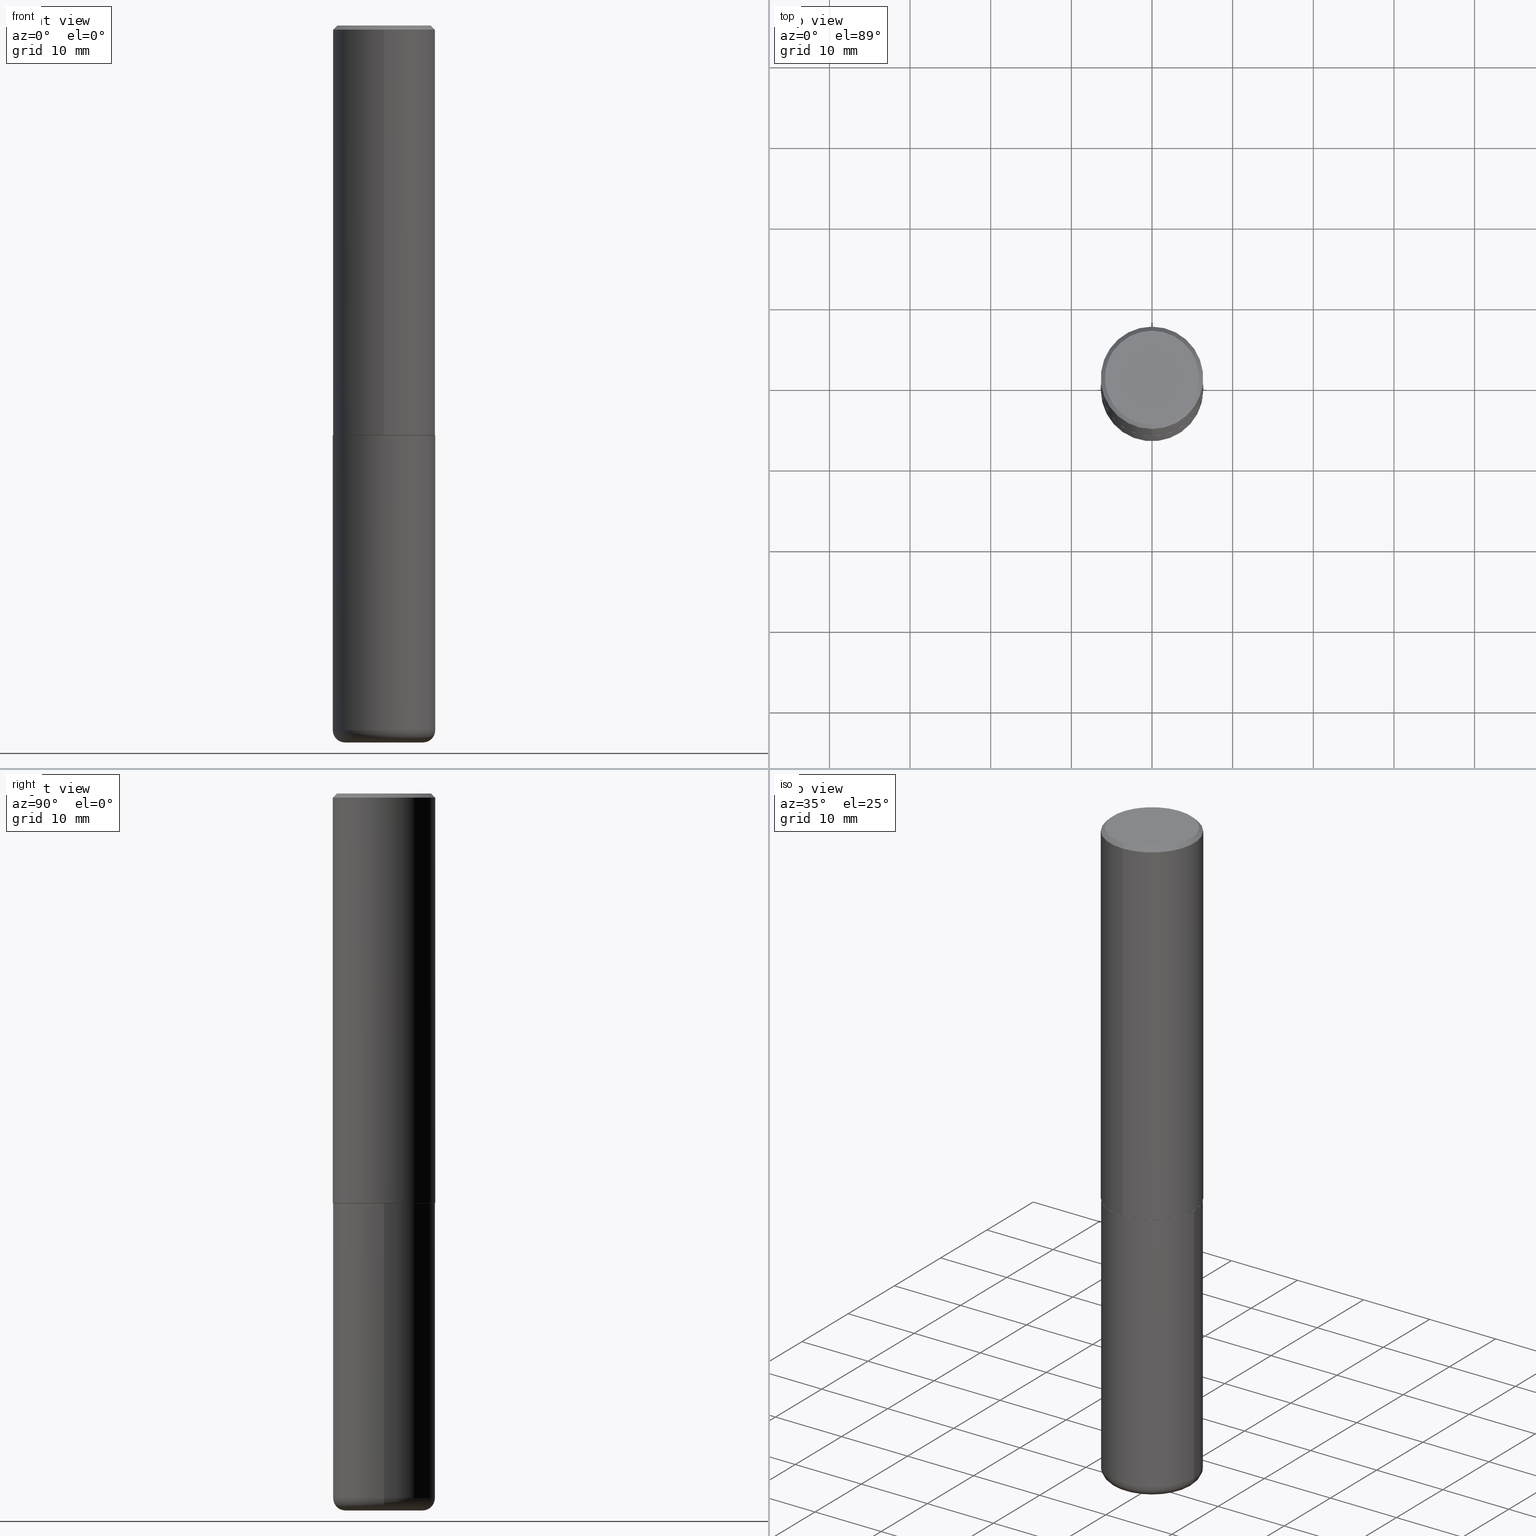
[diagram: canonical four-view strip — front | top / right | iso, engineering-drawing reading convention]
A machine part, canonical four-view strip (front | top / right | iso — engineering-drawing reading convention). The complete STEP part file that produces these views, byte-faithful:
ISO-10303-21;
HEADER;
FILE_DESCRIPTION (( 'STEP AP203' ),
    '1' );
FILE_NAME ('77361.STEP',
    '2024-05-02T19:32:17',
    ( '' ),
    ( '' ),
    'SwSTEP 2.0',
    'SolidWorks 2023',
    '' );
FILE_SCHEMA (( 'CONFIG_CONTROL_DESIGN' ));
ENDSEC;

DATA;
#1 = VECTOR ( 'NONE', #250, 39.37007874015748143 ) ;
#2 = CC_DESIGN_APPROVAL ( #20, ( #97 ) ) ;
#3 = DATE_AND_TIME ( #320, #137 ) ;
#4 = APPROVAL_STATUS ( 'not_yet_approved' ) ;
#5 = ORIENTED_EDGE ( 'NONE', *, *, #6, .F. ) ;
#6 = EDGE_CURVE ( 'NONE', #164, #407, #315, .T. ) ;
#7 = CARTESIAN_POINT ( 'NONE',  ( -1.745740669421519543E-15, -0.2500000000000072720, -1.998999999999999000 ) ) ;
#8 = MANIFOLD_SOLID_BREP ( 'Body-Move/Copy2[1]', #188 ) ;
#9 = CIRCLE ( 'NONE', #338, 0.2489999999999999991 ) ;
#10 = DIRECTION ( 'NONE',  ( 2.444078991372175283E-29, -3.493471632758652550E-15, -1.000000000000000000 ) ) ;
#11 = CARTESIAN_POINT ( 'NONE',  ( 8.412412693276869938E-29, -1.201069580562042103E-14, -3.439999999999999947 ) ) ;
#12 = PRODUCT_DEFINITION_SHAPE ( 'NONE', 'NONE',  #101 ) ;
#13 = ADVANCED_BREP_SHAPE_REPRESENTATION ( '77361', ( #8, #285, #54 ), #212 ) ;
#14 = DIRECTION ( 'NONE',  ( -6.982962677686265922E-15, -1.000000000000000000, 3.493471632758652550E-15 ) ) ;
#15 = ADVANCED_FACE ( 'NONE', ( #296 ), #197, .T. ) ;
#16 = AXIS2_PLACEMENT_3D ( 'NONE', #128, #95, #413 ) ;
#17 = DIRECTION ( 'NONE',  ( -2.444078991372175563E-29, 3.493471632758652550E-15, 1.000000000000000000 ) ) ;
#18 = ORIENTED_EDGE ( 'NONE', *, *, #42, .T. ) ;
#19 = DIRECTION ( 'NONE',  ( -2.445468806185136597E-29, 3.491481338843145583E-15, 1.000000000000000000 ) ) ;
#20 = APPROVAL ( #394, 'UNSPECIFIED' ) ;
#21 = VERTEX_POINT ( 'NONE', #145 ) ;
#22 = DIRECTION ( 'NONE',  ( -2.444078991372175563E-29, 3.493471632758652550E-15, 1.000000000000000000 ) ) ;
#23 = FACE_OUTER_BOUND ( 'NONE', #51, .T. ) ;
#24 = ORIENTED_EDGE ( 'NONE', *, *, #393, .F. ) ;
#25 = CIRCLE ( 'NONE', #247, 0.2500000000000000000 ) ;
#26 = DIRECTION ( 'NONE',  ( -2.444078991372175563E-29, 3.493471632758652550E-15, 1.000000000000000000 ) ) ;
#27 = EDGE_LOOP ( 'NONE', ( #55, #161, #332, #120 ) ) ;
#28 = PERSON_AND_ORGANIZATION ( #398, #254 ) ;
#29 = DIRECTION ( 'NONE',  ( -2.445468806185136597E-29, 3.491481338843145583E-15, 1.000000000000000000 ) ) ;
#30 = EDGE_LOOP ( 'NONE', ( #259, #24 ) ) ;
#31 = CIRCLE ( 'NONE', #342, 0.1899999999999999745 ) ;
#32 = APPLICATION_CONTEXT ( 'configuration controlled 3d designs of mechanical parts and assemblies' ) ;
#33 = LOCAL_TIME ( 15, 32, 17.00000000000000000, #38 ) ;
#34 = CIRCLE ( 'NONE', #331, 0.05999999999999994227 ) ;
#35 = DATE_AND_TIME ( #227, #343 ) ;
#36 = CARTESIAN_POINT ( 'NONE',  ( 0.2500000000000000000, -8.728703347107857054E-15, -2.000000000000000000 ) ) ;
#37 = EDGE_CURVE ( 'NONE', #58, #21, #69, .T. ) ;
#38 = COORDINATED_UNIVERSAL_TIME_OFFSET ( 5, 0, .BEHIND. ) ;
#39 = DIRECTION ( 'NONE',  ( 1.000000000000000000, -6.982962677686266711E-15, 0.000000000000000000 ) ) ;
#40 = EDGE_CURVE ( 'NONE', #256, #198, #31, .T. ) ;
#41 = CALENDAR_DATE ( 2024, 2, 5 ) ;
#42 = EDGE_CURVE ( 'NONE', #93, #253, #389, .T. ) ;
#43 = CARTESIAN_POINT ( 'NONE',  ( 4.890937612370273194E-29, -6.982962677686291165E-15, -2.000000000000000000 ) ) ;
#44 = DIRECTION ( 'NONE',  ( -6.982962677686265133E-15, -1.000000000000000000, 3.291383124896702687E-15 ) ) ;
#45 = AXIS2_PLACEMENT_3D ( 'NONE', #298, #85, #14 ) ;
#46 =( LENGTH_UNIT ( ) NAMED_UNIT ( * ) SI_UNIT ( $, .METRE. ) );
#47 = DIRECTION ( 'NONE',  ( -6.982962677686265133E-15, -1.000000000000000000, 3.291383124896702687E-15 ) ) ;
#48 = CARTESIAN_POINT ( 'NONE',  ( 8.559140821647976968E-29, -1.222018468595100934E-14, -3.500000000000000000 ) ) ;
#49 = MECHANICAL_CONTEXT ( 'NONE', #32, 'mechanical' ) ;
#50 = LINE ( 'NONE', #230, #82 ) ;
#51 = EDGE_LOOP ( 'NONE', ( #328, #243, #139, #152 ) ) ;
#52 = PLANE ( 'NONE',  #53 ) ;
#53 = AXIS2_PLACEMENT_3D ( 'NONE', #181, #122, #217 ) ;
#54 = AXIS2_PLACEMENT_3D ( 'NONE', #149, #269, #236 ) ;
#55 = ORIENTED_EDGE ( 'NONE', *, *, #388, .F. ) ;
#56 = DIRECTION ( 'NONE',  ( -6.982962677686266711E-15, -1.000000000000000000, 3.491481338843145583E-15 ) ) ;
#57 = APPLICATION_CONTEXT ( 'configuration controlled 3d designs of mechanical parts and assemblies' ) ;
#58 = VERTEX_POINT ( 'NONE', #266 ) ;
#59 = DIRECTION ( 'NONE',  ( -6.982962677686265922E-15, -1.000000000000000000, 3.278217592397112312E-15 ) ) ;
#60 = ADVANCED_FACE ( 'NONE', ( #170 ), #381, .T. ) ;
#61 = ORIENTED_EDGE ( 'NONE', *, *, #334, .F. ) ;
#62 = FACE_OUTER_BOUND ( 'NONE', #282, .T. ) ;
#63 = CARTESIAN_POINT ( 'NONE',  ( 4.888157982744351127E-29, -6.986943265517304311E-15, -2.000000000000000000 ) ) ;
#64 = ORIENTED_EDGE ( 'NONE', *, *, #373, .F. ) ;
#65 = AXIS2_PLACEMENT_3D ( 'NONE', #215, #22, #126 ) ;
#66 = CARTESIAN_POINT ( 'NONE',  ( 8.412412693276869938E-29, -1.201069580562042103E-14, -3.439999999999999947 ) ) ;
#67 = DIRECTION ( 'NONE',  ( 2.444078991372175563E-29, -3.493471632758652550E-15, -1.000000000000000000 ) ) ;
#68 = ORIENTED_EDGE ( 'NONE', *, *, #334, .T. ) ;
#69 = CIRCLE ( 'NONE', #45, 0.2299999999999997047 ) ;
#70 = APPROVAL_DATE_TIME ( #277, #199 ) ;
#71 = DATE_TIME_ROLE ( 'classification_date' ) ;
#72 = DIRECTION ( 'NONE',  ( -2.445468806185136597E-29, 3.491481338843145583E-15, 1.000000000000000000 ) ) ;
#73 = EDGE_LOOP ( 'NONE', ( #218, #64 ) ) ;
#74 = CIRCLE ( 'NONE', #90, 0.2500000000000000000 ) ;
#75 = CC_DESIGN_SECURITY_CLASSIFICATION ( #109, ( #97 ) ) ;
#76 = COORDINATED_UNIVERSAL_TIME_OFFSET ( 5, 0, .BEHIND. ) ;
#77 =( NAMED_UNIT ( * ) SI_UNIT ( $, .STERADIAN. ) SOLID_ANGLE_UNIT ( ) );
#78 = DIRECTION ( 'NONE',  ( -2.445468806185136877E-29, 3.491481338843145188E-15, 1.000000000000000000 ) ) ;
#79 = ADVANCED_FACE ( 'NONE', ( #326 ), #81, .T. ) ;
#80 = DIRECTION ( 'NONE',  ( 2.444078991372175563E-29, -3.493471632758652550E-15, -1.000000000000000000 ) ) ;
#81 = CYLINDRICAL_SURFACE ( 'NONE', #416, 0.2500000000000000000 ) ;
#82 = VECTOR ( 'NONE', #351, 39.37007874015748143 ) ;
#83 = APPLICATION_PROTOCOL_DEFINITION ( 'international standard', 'config_control_design', 1994, #32 ) ;
#84 = CC_DESIGN_APPROVAL ( #299, ( #101 ) ) ;
#85 = DIRECTION ( 'NONE',  ( -2.444078991372175563E-29, 3.493471632758652550E-15, 1.000000000000000000 ) ) ;
#86 = CARTESIAN_POINT ( 'NONE',  ( 0.000000000000000000, 0.000000000000000000, 0.000000000000000000 ) ) ;
#87 = EDGE_CURVE ( 'NONE', #198, #214, #34, .T. ) ;
#88 = ORIENTED_EDGE ( 'NONE', *, *, #190, .F. ) ;
#89 = DIRECTION ( 'NONE',  ( -4.937700262165053702E-15, -0.7071067811866175168, 0.7071067811864775177 ) ) ;
#90 = AXIS2_PLACEMENT_3D ( 'NONE', #43, #321, #39 ) ;
#91 = CIRCLE ( 'NONE', #132, 0.1899999999999999745 ) ;
#92 = CARTESIAN_POINT ( 'NONE',  ( 1.776356839400276103E-15, 0.2499999999999932832, -1.999000000000000776 ) ) ;
#93 = VERTEX_POINT ( 'NONE', #7 ) ;
#94 = CARTESIAN_POINT ( 'NONE',  ( 0.1899999999999999745, -1.333745871438081265E-14, -3.439999999999999947 ) ) ;
#95 = DIRECTION ( 'NONE',  ( -2.445468806185136597E-29, 3.491481338843145583E-15, 1.000000000000000000 ) ) ;
#96 = EDGE_LOOP ( 'NONE', ( #156, #163, #379, #5 ) ) ;
#97 = PRODUCT_DEFINITION_FORMATION_WITH_SPECIFIED_SOURCE ( 'ANY', '', #401, .NOT_KNOWN. ) ;
#98 = DESIGN_CONTEXT ( 'detailed design', #57, 'design' ) ;
#99 = FACE_OUTER_BOUND ( 'NONE', #96, .T. ) ;
#100 = EDGE_LOOP ( 'NONE', ( #303, #125, #148, #383 ) ) ;
#101 = PRODUCT_DEFINITION ( 'UNKNOWN', '', #97, #98 ) ;
#102 = CONICAL_SURFACE ( 'NONE', #167, 0.2489999999999999991, 0.7853981633975507526 ) ;
#103 = EDGE_LOOP ( 'NONE', ( #88, #417, #346, #222 ) ) ;
#104 = COORDINATED_UNIVERSAL_TIME_OFFSET ( 5, 0, .BEHIND. ) ;
#105 = ORIENTED_EDGE ( 'NONE', *, *, #340, .T. ) ;
#106 = APPROVAL_ROLE ( '' ) ;
#107 =( NAMED_UNIT ( * ) PLANE_ANGLE_UNIT ( ) SI_UNIT ( $, .RADIAN. ) );
#108 = DIRECTION ( 'NONE',  ( -1.000000000000000000, 7.105427357600997914E-15, 0.000000000000000000 ) ) ;
#109 = SECURITY_CLASSIFICATION ( '', '', #165 ) ;
#110 = COORDINATED_UNIVERSAL_TIME_OFFSET ( 5, 0, .BEHIND. ) ;
#111 = FACE_OUTER_BOUND ( 'NONE', #333, .T. ) ;
#112 = DIRECTION ( 'NONE',  ( -4.851104656540954809E-15, -0.7071067811865486830, -0.7071067811865462405 ) ) ;
#113 = DATE_TIME_ROLE ( 'creation_date' ) ;
#114 = CARTESIAN_POINT ( 'NONE',  ( 1.772804125721499462E-15, 0.2489999999999930047, -2.000000000000000888 ) ) ;
#115 = CC_DESIGN_PERSON_AND_ORGANIZATION_ASSIGNMENT ( #195, #313, ( #97 ) ) ;
#116 = DIRECTION ( 'NONE',  ( 1.000000000000000000, -6.982962677686265133E-15, 4.883557194083112340E-29 ) ) ;
#117 = CALENDAR_DATE ( 2024, 2, 5 ) ;
#118 = CARTESIAN_POINT ( 'NONE',  ( 0.2499999999999999722, -1.375643647504198770E-14, -3.439999999999999947 ) ) ;
#119 = DIRECTION ( 'NONE',  ( 1.000000000000000000, -6.982962677686273021E-15, 0.000000000000000000 ) ) ;
#120 = ORIENTED_EDGE ( 'NONE', *, *, #362, .T. ) ;
#121 = EDGE_CURVE ( 'NONE', #410, #253, #50, .T. ) ;
#122 = DIRECTION ( 'NONE',  ( -2.444078991372175283E-29, 3.493471632758652550E-15, 1.000000000000000000 ) ) ;
#123 = CIRCLE ( 'NONE', #300, 0.05999999999999994227 ) ;
#124 = AXIS2_PLACEMENT_3D ( 'NONE', #223, #67, #159 ) ;
#125 = ORIENTED_EDGE ( 'NONE', *, *, #121, .T. ) ;
#126 = DIRECTION ( 'NONE',  ( -6.982962677686265922E-15, -1.000000000000000000, 3.493471632758652550E-15 ) ) ;
#127 = VERTEX_POINT ( 'NONE', #392 ) ;
#128 = CARTESIAN_POINT ( 'NONE',  ( 4.890937612370273194E-29, -6.982962677686291165E-15, -2.000000000000000000 ) ) ;
#129 = EDGE_CURVE ( 'NONE', #407, #127, #74, .T. ) ;
#130 = EDGE_LOOP ( 'NONE', ( #385, #412 ) ) ;
#131 = DIRECTION ( 'NONE',  ( 1.000000000000000000, -6.982962677686274599E-15, 0.000000000000000000 ) ) ;
#132 = AXIS2_PLACEMENT_3D ( 'NONE', #48, #142, #119 ) ;
#133 = PRODUCT_RELATED_PRODUCT_CATEGORY ( 'detail', '', ( #401 ) ) ;
#134 = ORIENTED_EDGE ( 'NONE', *, *, #405, .F. ) ;
#135 = EDGE_CURVE ( 'NONE', #58, #173, #292, .T. ) ;
#136 = CONICAL_SURFACE ( 'NONE', #289, 0.2500000000000000555, 0.7853981633974466137 ) ;
#137 = LOCAL_TIME ( 15, 32, 17.00000000000000000, #76 ) ;
#138 = PERSON_AND_ORGANIZATION ( #398, #254 ) ;
#139 = ORIENTED_EDGE ( 'NONE', *, *, #344, .F. ) ;
#140 = CARTESIAN_POINT ( 'NONE',  ( 4.885713903752978284E-29, -6.983449793884546288E-15, -1.998999999999999888 ) ) ;
#141 = CARTESIAN_POINT ( 'NONE',  ( 1.745740669421567269E-15, 0.2499999999999999722, -0.02000000000000096492 ) ) ;
#142 = DIRECTION ( 'NONE',  ( -2.445468806185136597E-29, 3.491481338843145583E-15, 1.000000000000000000 ) ) ;
#143 = CLOSED_SHELL ( 'NONE', ( #15, #380, #177, #288, #290, #337, #261, #172 ) ) ;
#144 = AXIS2_PLACEMENT_3D ( 'NONE', #192, #19, #151 ) ;
#145 = CARTESIAN_POINT ( 'NONE',  ( -1.646519519465166376E-15, -0.2299999999999997047, 1.115557654912385711E-15 ) ) ;
#146 = DIRECTION ( 'NONE',  ( 6.982962677686265133E-15, 1.000000000000000000, -3.500180241882336472E-15 ) ) ;
#147 = FACE_OUTER_BOUND ( 'NONE', #248, .T. ) ;
#148 = ORIENTED_EDGE ( 'NONE', *, *, #42, .F. ) ;
#149 = CARTESIAN_POINT ( 'NONE',  ( 0.000000000000000000, 0.000000000000000000, 0.000000000000000000 ) ) ;
#150 = ORIENTED_EDGE ( 'NONE', *, *, #388, .T. ) ;
#151 = DIRECTION ( 'NONE',  ( 1.000000000000000000, -6.982962677686266711E-15, 4.876176775795935793E-29 ) ) ;
#152 = ORIENTED_EDGE ( 'NONE', *, *, #252, .F. ) ;
#153 = AXIS2_PLACEMENT_3D ( 'NONE', #11, #171, #360 ) ;
#154 = ORIENTED_EDGE ( 'NONE', *, *, #245, .T. ) ;
#155 = PLANE ( 'NONE',  #278 ) ;
#156 = ORIENTED_EDGE ( 'NONE', *, *, #344, .T. ) ;
#157 = DIRECTION ( 'NONE',  ( 1.000000000000000000, -6.982962677686265133E-15, 4.883557194083112340E-29 ) ) ;
#158 = CC_DESIGN_PERSON_AND_ORGANIZATION_ASSIGNMENT ( #260, #384, ( #109 ) ) ;
#159 = DIRECTION ( 'NONE',  ( 6.982962677686265133E-15, 1.000000000000000000, -3.500180241882336472E-15 ) ) ;
#160 = VECTOR ( 'NONE', #78, 39.37007874015748143 ) ;
#161 = ORIENTED_EDGE ( 'NONE', *, *, #37, .F. ) ;
#162 = ORIENTED_EDGE ( 'NONE', *, *, #87, .F. ) ;
#163 = ORIENTED_EDGE ( 'NONE', *, *, #190, .T. ) ;
#164 = VERTEX_POINT ( 'NONE', #118 ) ;
#165 = SECURITY_CLASSIFICATION_LEVEL ( 'unclassified' ) ;
#166 = CIRCLE ( 'NONE', #16, 0.2500000000000000000 ) ;
#167 = AXIS2_PLACEMENT_3D ( 'NONE', #327, #271, #363 ) ;
#168 = PERSON_AND_ORGANIZATION ( #398, #254 ) ;
#169 = CALENDAR_DATE ( 2024, 2, 5 ) ;
#170 = FACE_OUTER_BOUND ( 'NONE', #368, .T. ) ;
#171 = DIRECTION ( 'NONE',  ( -2.445468806185136597E-29, 3.491481338843145583E-15, 1.000000000000000000 ) ) ;
#172 = ADVANCED_FACE ( 'NONE', ( #268 ), #390, .F. ) ;
#173 = VERTEX_POINT ( 'NONE', #359 ) ;
#174 = DATE_AND_TIME ( #117, #311 ) ;
#175 = DIRECTION ( 'NONE',  ( -2.444078991372175563E-29, 3.493471632758652550E-15, 1.000000000000000000 ) ) ;
#176 = DIRECTION ( 'NONE',  ( -2.444078991372175563E-29, 3.493471632758652550E-15, 1.000000000000000000 ) ) ;
#177 = ADVANCED_FACE ( 'NONE', ( #111 ), #136, .T. ) ;
#178 = CARTESIAN_POINT ( 'NONE',  ( 4.888157982744351127E-29, -6.986943265517304311E-15, -2.000000000000000000 ) ) ;
#179 = ORIENTED_EDGE ( 'NONE', *, *, #206, .T. ) ;
#180 = TOROIDAL_SURFACE ( 'NONE', #229, 0.1899999999999999745, 0.05999999999999995615 ) ;
#181 = CARTESIAN_POINT ( 'NONE',  ( 4.888157982744351127E-29, -6.986943265517304311E-15, -2.000000000000000000 ) ) ;
#182 = AXIS2_PLACEMENT_3D ( 'NONE', #378, #341, #246 ) ;
#183 = ORIENTED_EDGE ( 'NONE', *, *, #135, .F. ) ;
#184 = LINE ( 'NONE', #404, #238 ) ;
#185 = APPROVAL_STATUS ( 'not_yet_approved' ) ;
#186 = CC_DESIGN_DATE_AND_TIME_ASSIGNMENT ( #3, #113, ( #101 ) ) ;
#187 = CARTESIAN_POINT ( 'NONE',  ( 4.885713903752978284E-29, -6.983449793884546288E-15, -1.998999999999999888 ) ) ;
#188 = CLOSED_SHELL ( 'NONE', ( #309, #257, #287, #79, #60, #203 ) ) ;
#189 = AXIS2_PLACEMENT_3D ( 'NONE', #272, #242, #364 ) ;
#190 = EDGE_CURVE ( 'NONE', #214, #127, #208, .T. ) ;
#191 =( CONVERSION_BASED_UNIT ( 'INCH', #377 ) LENGTH_UNIT ( ) NAMED_UNIT ( #409 ) );
#192 = CARTESIAN_POINT ( 'NONE',  ( 0.000000000000000000, 0.000000000000000000, 0.000000000000000000 ) ) ;
#193 = EDGE_CURVE ( 'NONE', #370, #93, #184, .T. ) ;
#194 = VECTOR ( 'NONE', #112, 39.37007874015748854 ) ;
#195 = PERSON_AND_ORGANIZATION ( #398, #254 ) ;
#196 = CARTESIAN_POINT ( 'NONE',  ( 8.559140821647976968E-29, -1.222018468595100934E-14, -3.500000000000000000 ) ) ;
#197 = CONICAL_SURFACE ( 'NONE', #348, 0.2489999999999999991, 0.7853981633975507526 ) ;
#198 = VERTEX_POINT ( 'NONE', #244 ) ;
#199 = APPROVAL ( #4, 'UNSPECIFIED' ) ;
#200 = ORIENTED_EDGE ( 'NONE', *, *, #121, .F. ) ;
#201 = DIRECTION ( 'NONE',  ( -2.444078991372175563E-29, 3.493471632758652550E-15, 1.000000000000000000 ) ) ;
#202 = DIRECTION ( 'NONE',  ( -6.982962677686265922E-15, -1.000000000000000000, 3.278217592397112312E-15 ) ) ;
#203 = ADVANCED_FACE ( 'NONE', ( #366 ), #155, .T. ) ;
#204 = DIRECTION ( 'NONE',  ( 4.937700262164538576E-15, 0.7071067811865437980, -0.7071067811865511255 ) ) ;
#205 = AXIS2_PLACEMENT_3D ( 'NONE', #232, #356, #116 ) ;
#206 = EDGE_CURVE ( 'NONE', #253, #93, #314, .T. ) ;
#207 = AXIS2_PLACEMENT_3D ( 'NONE', #86, #201, #319 ) ;
#208 = LINE ( 'NONE', #216, #1 ) ;
#209 = DIRECTION ( 'NONE',  ( -2.445468806185136597E-29, 3.491481338843145583E-15, 1.000000000000000000 ) ) ;
#210 = ORIENTED_EDGE ( 'NONE', *, *, #129, .T. ) ;
#211 = DIRECTION ( 'NONE',  ( -2.444078991372175563E-29, 3.493471632758652550E-15, 1.000000000000000000 ) ) ;
#212 =( GEOMETRIC_REPRESENTATION_CONTEXT ( 3 ) GLOBAL_UNCERTAINTY_ASSIGNED_CONTEXT ( ( #312 ) ) GLOBAL_UNIT_ASSIGNED_CONTEXT ( ( #191, #107, #77 ) ) REPRESENTATION_CONTEXT ( 'NONE', 'WORKASPACE' ) );
#213 = PERSON_AND_ORGANIZATION ( #398, #254 ) ;
#214 = VERTEX_POINT ( 'NONE', #372 ) ;
#215 = CARTESIAN_POINT ( 'NONE',  ( -7.626972843823584403E-45, 1.090169890898625670E-30, 3.120591793778966343E-16 ) ) ;
#216 = CARTESIAN_POINT ( 'NONE',  ( -0.2500000000000000000, 1.776356839400250465E-15, -1.229733772563726445E-29 ) ) ;
#217 = DIRECTION ( 'NONE',  ( -6.982962677686265922E-15, -1.000000000000000000, 3.493471632758652550E-15 ) ) ;
#218 = ORIENTED_EDGE ( 'NONE', *, *, #40, .F. ) ;
#219 = DIRECTION ( 'NONE',  ( -2.444078991372175563E-29, 3.493471632758652550E-15, 1.000000000000000000 ) ) ;
#220 = CARTESIAN_POINT ( 'NONE',  ( 0.1899999999999999745, -1.354694759471140096E-14, -3.500000000000000000 ) ) ;
#221 = ORIENTED_EDGE ( 'NONE', *, *, #252, .T. ) ;
#222 = ORIENTED_EDGE ( 'NONE', *, *, #245, .F. ) ;
#223 = CARTESIAN_POINT ( 'NONE',  ( 4.888157982744373443E-31, -6.986943265517335816E-17, -0.02000000000000009062 ) ) ;
#224 = CYLINDRICAL_SURFACE ( 'NONE', #144, 0.2500000000000000000 ) ;
#225 = ORIENTED_EDGE ( 'NONE', *, *, #233, .F. ) ;
#226 = DIRECTION ( 'NONE',  ( -1.000000000000000000, 6.982962677686265922E-15, -4.876176775795935793E-29 ) ) ;
#227 = CALENDAR_DATE ( 2024, 2, 5 ) ;
#228 = CC_DESIGN_PERSON_AND_ORGANIZATION_ASSIGNMENT ( #138, #317, ( #97 ) ) ;
#229 = AXIS2_PLACEMENT_3D ( 'NONE', #66, #29, #157 ) ;
#230 = CARTESIAN_POINT ( 'NONE',  ( 1.769251412042697971E-15, 0.2489999999999930047, -2.000000000000000888 ) ) ;
#231 = APPROVAL_DATE_TIME ( #174, #299 ) ;
#232 = CARTESIAN_POINT ( 'NONE',  ( 8.412412693276869938E-29, -1.201069580562042103E-14, -3.439999999999999947 ) ) ;
#233 = EDGE_CURVE ( 'NONE', #310, #173, #358, .T. ) ;
#234 = CARTESIAN_POINT ( 'NONE',  ( -0.1899999999999999745, -1.066066460767623105E-14, -3.439999999999999947 ) ) ;
#235 = CARTESIAN_POINT ( 'NONE',  ( 1.776356839400251254E-15, 0.2500000000000001110, -8.733679081896635319E-16 ) ) ;
#236 = DIRECTION ( 'NONE',  ( 1.000000000000000000, 0.000000000000000000, 0.000000000000000000 ) ) ;
#237 = DIRECTION ( 'NONE',  ( 6.982962677686265922E-15, 1.000000000000000000, -3.493471632758652550E-15 ) ) ;
#238 = VECTOR ( 'NONE', #89, 39.37007874015748143 ) ;
#239 = CC_DESIGN_APPROVAL ( #199, ( #109 ) ) ;
#240 = ORIENTED_EDGE ( 'NONE', *, *, #362, .F. ) ;
#241 = EDGE_CURVE ( 'NONE', #370, #410, #9, .T. ) ;
#242 = DIRECTION ( 'NONE',  ( -2.444078991372175563E-29, 3.493471632758652550E-15, 1.000000000000000000 ) ) ;
#243 = ORIENTED_EDGE ( 'NONE', *, *, #87, .T. ) ;
#244 = CARTESIAN_POINT ( 'NONE',  ( -0.1899999999999999745, -1.055224622711349575E-14, -3.500000000000000000 ) ) ;
#245 = EDGE_CURVE ( 'NONE', #127, #407, #166, .T. ) ;
#246 = DIRECTION ( 'NONE',  ( -6.982962677686266711E-15, -1.000000000000000000, 3.493471632758652550E-15 ) ) ;
#247 = AXIS2_PLACEMENT_3D ( 'NONE', #330, #353, #294 ) ;
#248 = EDGE_LOOP ( 'NONE', ( #18, #105, #225, #61 ) ) ;
#249 = LINE ( 'NONE', #371, #284 ) ;
#250 = DIRECTION ( 'NONE',  ( -2.445468806185136877E-29, 3.491481338843145188E-15, 1.000000000000000000 ) ) ;
#251 = EDGE_LOOP ( 'NONE', ( #210, #154 ) ) ;
#252 = EDGE_CURVE ( 'NONE', #256, #164, #123, .T. ) ;
#253 = VERTEX_POINT ( 'NONE', #92 ) ;
#254 = ORGANIZATION ( 'UNSPECIFIED', 'UNSPECIFIED', '' ) ;
#255 = CYLINDRICAL_SURFACE ( 'NONE', #182, 0.2500000000000001110 ) ;
#256 = VERTEX_POINT ( 'NONE', #220 ) ;
#257 = ADVANCED_FACE ( 'NONE', ( #23 ), #180, .T. ) ;
#258 = APPROVAL_PERSON_ORGANIZATION ( #213, #299, #276 ) ;
#259 = ORIENTED_EDGE ( 'NONE', *, *, #241, .F. ) ;
#260 = PERSON_AND_ORGANIZATION ( #398, #254 ) ;
#261 = ADVANCED_FACE ( 'NONE', ( #306 ), #52, .F. ) ;
#262 = PERSON_AND_ORGANIZATION ( #398, #254 ) ;
#263 = DIRECTION ( 'NONE',  ( 7.105427357601001859E-15, 1.000000000000000000, -3.491481338843145583E-15 ) ) ;
#264 = SHAPE_DEFINITION_REPRESENTATION ( #12, #13 ) ;
#265 = DIRECTION ( 'NONE',  ( 1.000000000000000000, -6.982962677686266711E-15, 4.876176775795935793E-29 ) ) ;
#266 = CARTESIAN_POINT ( 'NONE',  ( 1.675911042644703182E-15, 0.2299999999999997047, -4.914392961565924424E-16 ) ) ;
#267 = PERSON_AND_ORGANIZATION ( #398, #254 ) ;
#268 = FACE_OUTER_BOUND ( 'NONE', #130, .T. ) ;
#269 = DIRECTION ( 'NONE',  ( 0.000000000000000000, 0.000000000000000000, 1.000000000000000000 ) ) ;
#270 = ORIENTED_EDGE ( 'NONE', *, *, #340, .F. ) ;
#271 = DIRECTION ( 'NONE',  ( -2.444078991372175563E-29, 3.493471632758652550E-15, 1.000000000000000000 ) ) ;
#272 = CARTESIAN_POINT ( 'NONE',  ( 4.888157982744373443E-31, -6.986943265517335816E-17, -0.02000000000000009062 ) ) ;
#273 = ORIENTED_EDGE ( 'NONE', *, *, #373, .T. ) ;
#274 = CC_DESIGN_DATE_AND_TIME_ASSIGNMENT ( #35, #71, ( #109 ) ) ;
#275 = CARTESIAN_POINT ( 'NONE',  ( -1.715124499442882496E-15, -0.2500000000000001110, -0.01999999999999921632 ) ) ;
#276 = APPROVAL_ROLE ( '' ) ;
#277 = DATE_AND_TIME ( #169, #33 ) ;
#278 = AXIS2_PLACEMENT_3D ( 'NONE', #279, #308, #335 ) ;
#279 = CARTESIAN_POINT ( 'NONE',  ( 8.559140821647976968E-29, -1.222018468595100934E-14, -3.500000000000000000 ) ) ;
#280 = CARTESIAN_POINT ( 'NONE',  ( 4.890937612370273194E-29, -6.982962677686291165E-15, -2.000000000000000000 ) ) ;
#281 = ORIENTED_EDGE ( 'NONE', *, *, #193, .T. ) ;
#282 = EDGE_LOOP ( 'NONE', ( #200, #286, #281, #336 ) ) ;
#283 = AXIS2_PLACEMENT_3D ( 'NONE', #280, #414, #226 ) ;
#284 = VECTOR ( 'NONE', #219, 39.37007874015748143 ) ;
#285 = MANIFOLD_SOLID_BREP ( 'Body-Move/Copy2[2]', #143 ) ;
#286 = ORIENTED_EDGE ( 'NONE', *, *, #393, .T. ) ;
#287 = ADVANCED_FACE ( 'NONE', ( #369 ), #395, .F. ) ;
#288 = ADVANCED_FACE ( 'NONE', ( #386 ), #339, .T. ) ;
#289 = AXIS2_PLACEMENT_3D ( 'NONE', #354, #80, #146 ) ;
#290 = ADVANCED_FACE ( 'NONE', ( #415 ), #255, .T. ) ;
#291 = LOCAL_TIME ( 15, 32, 17.00000000000000000, #352 ) ;
#292 = LINE ( 'NONE', #141, #305 ) ;
#293 = DATE_AND_TIME ( #41, #291 ) ;
#294 = DIRECTION ( 'NONE',  ( 1.000000000000000000, -6.982962677686270655E-15, 0.000000000000000000 ) ) ;
#295 = AXIS2_PLACEMENT_3D ( 'NONE', #140, #175, #202 ) ;
#296 = FACE_OUTER_BOUND ( 'NONE', #100, .T. ) ;
#297 = CARTESIAN_POINT ( 'NONE',  ( 0.000000000000000000, 0.000000000000000000, 0.000000000000000000 ) ) ;
#298 = CARTESIAN_POINT ( 'NONE',  ( -7.626972843823584403E-45, 1.090169890898625670E-30, 3.120591793778966343E-16 ) ) ;
#299 = APPROVAL ( #185, 'UNSPECIFIED' ) ;
#300 = AXIS2_PLACEMENT_3D ( 'NONE', #94, #56, #131 ) ;
#301 = PERSON_AND_ORGANIZATION_ROLE ( 'design_owner' ) ;
#302 = VECTOR ( 'NONE', #17, 39.37007874015748143 ) ;
#303 = ORIENTED_EDGE ( 'NONE', *, *, #241, .T. ) ;
#304 = DIRECTION ( 'NONE',  ( -2.444078991372175563E-29, 3.493471632758652550E-15, 1.000000000000000000 ) ) ;
#305 = VECTOR ( 'NONE', #204, 39.37007874015748854 ) ;
#306 = FACE_OUTER_BOUND ( 'NONE', #30, .T. ) ;
#307 = AXIS2_PLACEMENT_3D ( 'NONE', #355, #176, #44 ) ;
#308 = DIRECTION ( 'NONE',  ( 2.438088387897960049E-29, -3.491481338843145188E-15, -1.000000000000000000 ) ) ;
#309 = ADVANCED_FACE ( 'NONE', ( #99 ), #224, .T. ) ;
#310 = VERTEX_POINT ( 'NONE', #275 ) ;
#311 = LOCAL_TIME ( 15, 32, 17.00000000000000000, #110 ) ;
#312 = UNCERTAINTY_MEASURE_WITH_UNIT (LENGTH_MEASURE( 1.000000000000000082E-05 ), #191, 'distance_accuracy_value', 'NONE');
#313 = PERSON_AND_ORGANIZATION_ROLE ( 'creator' ) ;
#314 = CIRCLE ( 'NONE', #374, 0.2500000000000002776 ) ;
#315 = LINE ( 'NONE', #318, #160 ) ;
#316 = ORIENTED_EDGE ( 'NONE', *, *, #233, .T. ) ;
#317 = PERSON_AND_ORGANIZATION_ROLE ( 'design_supplier' ) ;
#318 = CARTESIAN_POINT ( 'NONE',  ( 0.2500000000000000000, -1.745740669421566678E-15, 1.219044193948983948E-29 ) ) ;
#319 = DIRECTION ( 'NONE',  ( -6.982962677686266711E-15, -1.000000000000000000, 3.493471632758652550E-15 ) ) ;
#320 = CALENDAR_DATE ( 2024, 2, 5 ) ;
#321 = DIRECTION ( 'NONE',  ( -2.445468806185136597E-29, 3.491481338843145583E-15, 1.000000000000000000 ) ) ;
#322 = CYLINDRICAL_SURFACE ( 'NONE', #207, 0.2500000000000001110 ) ;
#323 = EDGE_CURVE ( 'NONE', #21, #58, #382, .T. ) ;
#324 = CARTESIAN_POINT ( 'NONE',  ( 1.606081415867839095E-15, 0.2299999999999997047, -6.474688858455407103E-16 ) ) ;
#325 = CIRCLE ( 'NONE', #153, 0.2500000000000000000 ) ;
#326 = FACE_OUTER_BOUND ( 'NONE', #103, .T. ) ;
#327 = CARTESIAN_POINT ( 'NONE',  ( 4.888157982744351127E-29, -6.986943265517304311E-15, -2.000000000000000000 ) ) ;
#328 = ORIENTED_EDGE ( 'NONE', *, *, #40, .T. ) ;
#329 = DIRECTION ( 'NONE',  ( -6.982962677686265133E-15, -1.000000000000000000, 3.500180241882336472E-15 ) ) ;
#330 = CARTESIAN_POINT ( 'NONE',  ( 8.412412693276869938E-29, -1.201069580562042103E-14, -3.439999999999999947 ) ) ;
#331 = AXIS2_PLACEMENT_3D ( 'NONE', #234, #263, #108 ) ;
#332 = ORIENTED_EDGE ( 'NONE', *, *, #135, .T. ) ;
#333 = EDGE_LOOP ( 'NONE', ( #365, #150, #316, #183 ) ) ;
#334 = EDGE_CURVE ( 'NONE', #93, #310, #249, .T. ) ;
#335 = DIRECTION ( 'NONE',  ( -1.000000000000000000, 6.982962677686265922E-15, -4.876176775795935793E-29 ) ) ;
#336 = ORIENTED_EDGE ( 'NONE', *, *, #206, .F. ) ;
#337 = ADVANCED_FACE ( 'NONE', ( #62 ), #102, .T. ) ;
#338 = AXIS2_PLACEMENT_3D ( 'NONE', #63, #304, #411 ) ;
#339 = CONICAL_SURFACE ( 'NONE', #124, 0.2500000000000000555, 0.7853981633974466137 ) ;
#340 = EDGE_CURVE ( 'NONE', #253, #173, #399, .T. ) ;
#341 = DIRECTION ( 'NONE',  ( -2.444078991372175563E-29, 3.493471632758652550E-15, 1.000000000000000000 ) ) ;
#342 = AXIS2_PLACEMENT_3D ( 'NONE', #196, #209, #347 ) ;
#343 = LOCAL_TIME ( 15, 32, 17.00000000000000000, #104 ) ;
#344 = EDGE_CURVE ( 'NONE', #164, #214, #325, .T. ) ;
#345 = APPROVAL_DATE_TIME ( #293, #20 ) ;
#346 = ORIENTED_EDGE ( 'NONE', *, *, #6, .T. ) ;
#347 = DIRECTION ( 'NONE',  ( 1.000000000000000000, -6.982962677686273021E-15, 0.000000000000000000 ) ) ;
#348 = AXIS2_PLACEMENT_3D ( 'NONE', #178, #396, #47 ) ;
#349 = APPROVAL_ROLE ( '' ) ;
#350 = APPROVAL_PERSON_ORGANIZATION ( #168, #199, #349 ) ;
#351 = DIRECTION ( 'NONE',  ( 5.024295867788576727E-15, 0.7071067811866224018, 0.7071067811864726327 ) ) ;
#352 = COORDINATED_UNIVERSAL_TIME_OFFSET ( 5, 0, .BEHIND. ) ;
#353 = DIRECTION ( 'NONE',  ( -2.445468806185136597E-29, 3.491481338843145583E-15, 1.000000000000000000 ) ) ;
#354 = CARTESIAN_POINT ( 'NONE',  ( 4.888157982744373443E-31, -6.986943265517335816E-17, -0.02000000000000009062 ) ) ;
#355 = CARTESIAN_POINT ( 'NONE',  ( 4.888157982744351127E-29, -6.986943265517304311E-15, -2.000000000000000000 ) ) ;
#356 = DIRECTION ( 'NONE',  ( -2.445468806185136597E-29, 3.491481338843145583E-15, 1.000000000000000000 ) ) ;
#357 = CARTESIAN_POINT ( 'NONE',  ( -1.715124499442882496E-15, -0.2500000000000001110, -0.01999999999999921632 ) ) ;
#358 = CIRCLE ( 'NONE', #367, 0.2500000000000000555 ) ;
#359 = CARTESIAN_POINT ( 'NONE',  ( 1.745740669421567269E-15, 0.2499999999999999722, -0.02000000000000096492 ) ) ;
#360 = DIRECTION ( 'NONE',  ( 1.000000000000000000, -6.982962677686270655E-15, 0.000000000000000000 ) ) ;
#361 = APPROVAL_PERSON_ORGANIZATION ( #267, #20, #106 ) ;
#362 = EDGE_CURVE ( 'NONE', #173, #310, #408, .T. ) ;
#363 = DIRECTION ( 'NONE',  ( -6.982962677686265133E-15, -1.000000000000000000, 3.291383124896702687E-15 ) ) ;
#364 = DIRECTION ( 'NONE',  ( -6.982962677686265133E-15, -1.000000000000000000, 3.500180241882336472E-15 ) ) ;
#365 = ORIENTED_EDGE ( 'NONE', *, *, #323, .F. ) ;
#366 = FACE_OUTER_BOUND ( 'NONE', #73, .T. ) ;
#367 = AXIS2_PLACEMENT_3D ( 'NONE', #375, #211, #329 ) ;
#368 = EDGE_LOOP ( 'NONE', ( #162, #273, #221, #134 ) ) ;
#369 = FACE_OUTER_BOUND ( 'NONE', #251, .T. ) ;
#370 = VERTEX_POINT ( 'NONE', #397 ) ;
#371 = CARTESIAN_POINT ( 'NONE',  ( -1.745740669421567467E-15, -0.2500000000000001110, 8.733679081896635319E-16 ) ) ;
#372 = CARTESIAN_POINT ( 'NONE',  ( -0.2499999999999999722, -1.023433896622016898E-14, -3.439999999999999947 ) ) ;
#373 = EDGE_CURVE ( 'NONE', #198, #256, #91, .T. ) ;
#374 = AXIS2_PLACEMENT_3D ( 'NONE', #187, #26, #59 ) ;
#375 = CARTESIAN_POINT ( 'NONE',  ( 4.888157982744373443E-31, -6.986943265517335816E-17, -0.02000000000000009062 ) ) ;
#376 = CC_DESIGN_PERSON_AND_ORGANIZATION_ASSIGNMENT ( #28, #301, ( #401 ) ) ;
#377 = LENGTH_MEASURE_WITH_UNIT ( LENGTH_MEASURE( 0.02539999999999999897 ), #46 );
#378 = CARTESIAN_POINT ( 'NONE',  ( 0.000000000000000000, 0.000000000000000000, 0.000000000000000000 ) ) ;
#379 = ORIENTED_EDGE ( 'NONE', *, *, #129, .F. ) ;
#380 = ADVANCED_FACE ( 'NONE', ( #147 ), #322, .T. ) ;
#381 = TOROIDAL_SURFACE ( 'NONE', #205, 0.1899999999999999745, 0.05999999999999995615 ) ;
#382 = CIRCLE ( 'NONE', #65, 0.2299999999999997047 ) ;
#383 = ORIENTED_EDGE ( 'NONE', *, *, #193, .F. ) ;
#384 = PERSON_AND_ORGANIZATION_ROLE ( 'classification_officer' ) ;
#385 = ORIENTED_EDGE ( 'NONE', *, *, #37, .T. ) ;
#386 = FACE_OUTER_BOUND ( 'NONE', #27, .T. ) ;
#387 = PERSON_AND_ORGANIZATION_ROLE ( 'creator' ) ;
#388 = EDGE_CURVE ( 'NONE', #21, #310, #391, .T. ) ;
#389 = CIRCLE ( 'NONE', #295, 0.2500000000000002776 ) ;
#390 = PLANE ( 'NONE',  #406 ) ;
#391 = LINE ( 'NONE', #357, #194 ) ;
#392 = CARTESIAN_POINT ( 'NONE',  ( -0.2500000000000000000, -7.720472402253106025E-15, -2.000000000000000000 ) ) ;
#393 = EDGE_CURVE ( 'NONE', #410, #370, #400, .T. ) ;
#394 = APPROVAL_STATUS ( 'not_yet_approved' ) ;
#395 = PLANE ( 'NONE',  #283 ) ;
#396 = DIRECTION ( 'NONE',  ( -2.444078991372175563E-29, 3.493471632758652550E-15, 1.000000000000000000 ) ) ;
#397 = CARTESIAN_POINT ( 'NONE',  ( -1.738757706743831360E-15, -0.2490000000000069935, -1.999999999999999112 ) ) ;
#398 = PERSON ( 'UNSPECIFIED', 'UNSPECIFIED', 'UNSPECIFIED', ('UNSPECIFIED'), ('UNSPECIFIED'), ('UNSPECIFIED') ) ;
#399 = LINE ( 'NONE', #235, #302 ) ;
#400 = CIRCLE ( 'NONE', #307, 0.2489999999999999991 ) ;
#401 = PRODUCT ( '77361', '77361', '', ( #49 ) ) ;
#402 = APPLICATION_PROTOCOL_DEFINITION ( 'international standard', 'config_control_design', 1994, #57 ) ;
#403 = EDGE_LOOP ( 'NONE', ( #270, #179, #68, #240 ) ) ;
#404 = CARTESIAN_POINT ( 'NONE',  ( -1.738757706743831360E-15, -0.2490000000000069935, -1.999999999999999112 ) ) ;
#405 = EDGE_CURVE ( 'NONE', #214, #164, #25, .T. ) ;
#406 = AXIS2_PLACEMENT_3D ( 'NONE', #324, #10, #237 ) ;
#407 = VERTEX_POINT ( 'NONE', #36 ) ;
#408 = CIRCLE ( 'NONE', #189, 0.2500000000000000555 ) ;
#409 = DIMENSIONAL_EXPONENTS ( 1.000000000000000000, 0.000000000000000000, 0.000000000000000000, 0.000000000000000000, 0.000000000000000000, 0.000000000000000000, 0.000000000000000000 ) ;
#410 = VERTEX_POINT ( 'NONE', #114 ) ;
#411 = DIRECTION ( 'NONE',  ( -6.982962677686265133E-15, -1.000000000000000000, 3.291383124896702687E-15 ) ) ;
#412 = ORIENTED_EDGE ( 'NONE', *, *, #323, .T. ) ;
#413 = DIRECTION ( 'NONE',  ( 1.000000000000000000, -6.982962677686266711E-15, 0.000000000000000000 ) ) ;
#414 = DIRECTION ( 'NONE',  ( 2.438088387897960049E-29, -3.491481338843145188E-15, -1.000000000000000000 ) ) ;
#415 = FACE_OUTER_BOUND ( 'NONE', #403, .T. ) ;
#416 = AXIS2_PLACEMENT_3D ( 'NONE', #297, #72, #265 ) ;
#417 = ORIENTED_EDGE ( 'NONE', *, *, #405, .T. ) ;
#418 = CC_DESIGN_PERSON_AND_ORGANIZATION_ASSIGNMENT ( #262, #387, ( #101 ) ) ;
ENDSEC;
END-ISO-10303-21;
